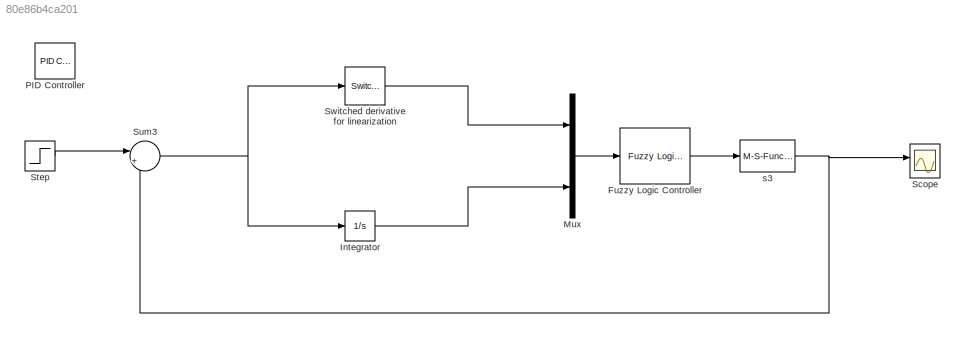
MODEL slx_80e86b4ca201
KIND model
CONFIG AbsTol = auto
CONFIG EnableMultiTasking = off
CONFIG FixedStep = auto
CONFIG MaxStep = auto
CONFIG MinStep = auto
CONFIG RelTol = 1e-3
CONFIG SampleTimeConstraint = Unconstrained
CONFIG SolverName = VariableStepAuto
CONFIG StartTime = 0.0
CONFIG StopTime = 200
BLOCK [Reference] Fuzzy Logic Controller  REF=fuzblock/Fuzzy Logic   (lib defined in mdl_858b3b3e7478)
Controller
  Ports = [1, 1]
  SourceBlock = fuzblock/Fuzzy Logic \nController
  SourceProductBaseCode = FL
  SourceType = Fuzzy Inference System
BLOCK [Integrator] Integrator
  InitialCondition = 0.051597529
  Ports = [1, 1]
BLOCK [Mux] Mux
  DisplayOption = bar
  Inputs = 3
  Ports = [3, 1]
BLOCK [Reference] PID Controller  REF=pid_lib/PID Controller
  Ports = [1, 1]
  SourceBlock = pid_lib/PID Controller
  SourceProductBaseCode = SL
  SourceType = PID 1dof
BLOCK [Scope] Scope
  Floating = off
  NumInputPorts = 4
  Ports = [4]
  ScopeSpecificationString = Simulink.scopes.TimeScopeBlockCfg('CurrentConfiguration', extmgr.ConfigurationSet(extmgr.Configuration('Core','General UI',true),extmgr.Configuration('Core','Source UI',true),extmgr.Configuration('Sources','WiredSimulink',true),extmgr.Configuration('Visuals','Time Domain',true,'SerializedDisplays',{struct('MinYLimReal','-0.16315','MaxYLimReal','1.46833','YLabelReal','','MinYLimMag','0.00000','MaxY...<+1567ch>
BLOCK [Step] Step
  SampleTime = 0
BLOCK [Sum] Sum3
  Inputs = |+-
  Ports = [2, 1]
BLOCK [Reference] Switched derivative for linearization  REF=simulink_extras/Linearization/Switched
derivative for
linearization
  Ports = [1, 1]
  SourceBlock = simulink_extras/Linearization/Switched\nderivative for\nlinearization
  SourceProductBaseCode = SL
  SourceType = Derivative for linearization
BLOCK [M-S-Function] s3
  FunctionName = whoknows
  Parameters = L, P1, P2, T, R
  Ports = [1, 1]
LINE Fuzzy Logic Controller:1 -> s3:1
LINE Integrator:1 -> Mux:3
LINE Mux:1 -> Fuzzy Logic Controller:1
LINE Step:1 -> Sum3:1
NET Sum3:1 -> Integrator:1, Switched derivative for linearization:1
LINE Switched derivative for linearization:1 -> Mux:1
NET s3:1 -> Scope:2, Sum3:2
note: NET lines group one-source signal fan-out (src -> all destinations, sorted); 1:1 wires keep LINE
